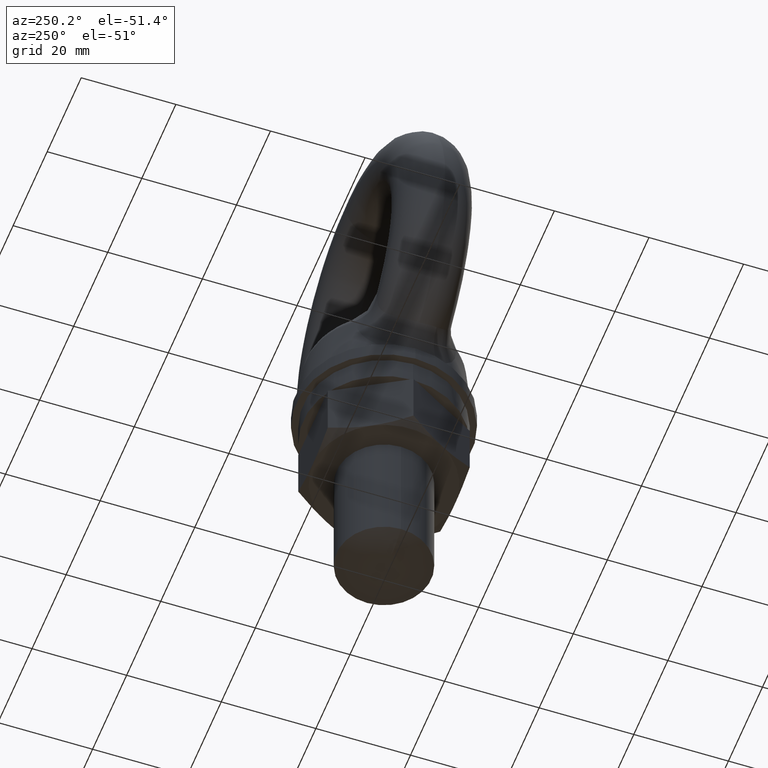
[diagram: clean part render]
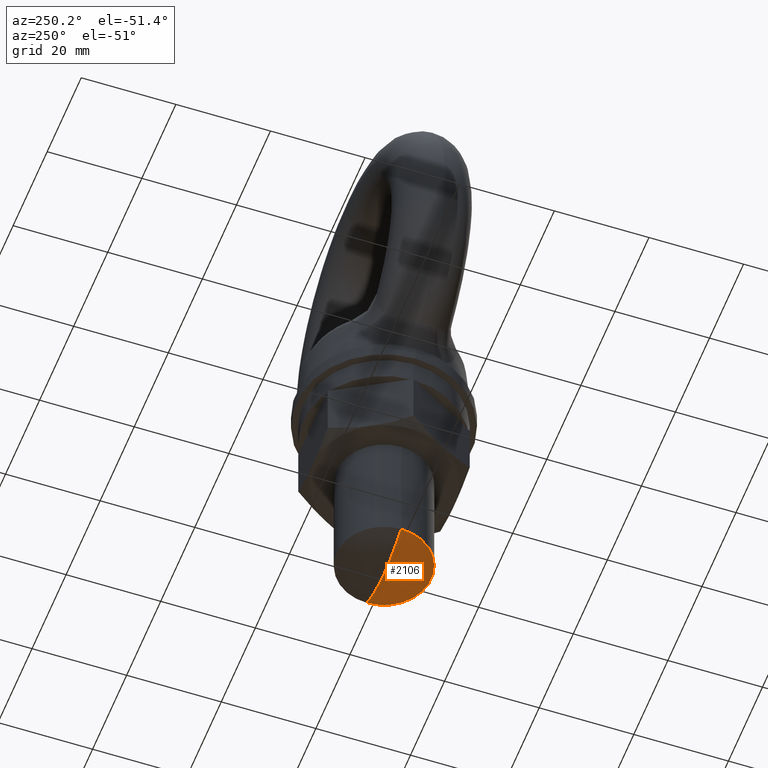
[diagram: same view with one face highlighted and labeled with its STEP entity id]
A machine part, auxiliary view. The second image highlights one B-rep face of the part: STEP entity #2106.
In plain terms, the highlighted spherical surface has radius 21.25 mm.
Its self-contained STEP definition (entity closure, byte-faithful):
#1591 = VERTEX_POINT ( 'NONE', #3097 ) ;
#1592 = VERTEX_POINT ( 'NONE', #3096 ) ;
#1594 = EDGE_CURVE ( 'NONE', #1592, #1595, #3210, .T. ) ;
#1595 = VERTEX_POINT ( 'NONE', #3214 ) ;
#1620 = EDGE_CURVE ( 'NONE', #1591, #1595, #3080, .T. ) ;
#1798 = EDGE_CURVE ( 'NONE', #1592, #1591, #6396, .T. ) ;
#2106 = ADVANCED_FACE ( 'NONE', ( #10552 ), #10551, .T. ) ;
#2107 = EDGE_LOOP ( 'NONE', ( #2108, #2109, #2110 ) ) ;
#2108 = ORIENTED_EDGE ( 'NONE', *, *, #1594, .F. ) ;
#2109 = ORIENTED_EDGE ( 'NONE', *, *, #1798, .T. ) ;
#2110 = ORIENTED_EDGE ( 'NONE', *, *, #1620, .T. ) ;
#3064 = DIRECTION ( 'NONE',  ( 0.0000000000000000000, 0.0000000000000000000, -1.000000000000000000 ) ) ;
#3077 = DIRECTION ( 'NONE',  ( 0.0000000000000000000, -1.000000000000000000, 0.0000000000000000000 ) ) ;
#3078 = CARTESIAN_POINT ( 'NONE',  ( 0.0000000000000000000, 0.0000000000000000000, -63.75000000000000000 ) ) ;
#3079 = AXIS2_PLACEMENT_3D ( 'NONE', #3078, #3077, #3064 ) ;
#3080 = CIRCLE ( 'NONE', #3079, 21.25000000000000400 ) ;
#3096 = CARTESIAN_POINT ( 'NONE',  ( 9.999998711995109700, 0.0000000000000000000, -82.50000068693590500 ) ) ;
#3097 = CARTESIAN_POINT ( 'NONE',  ( -9.999998711995109700, 1.224606274957423500E-015, -82.50000068693590500 ) ) ;
#3179 = DIRECTION ( 'NONE',  ( -1.000000000000000000, -1.224606353822377500E-016, 0.0000000000000000000 ) ) ;
#3180 = DIRECTION ( 'NONE',  ( -1.224606353822377300E-016, 1.000000000000000000, 0.0000000000000000000 ) ) ;
#3181 = CARTESIAN_POINT ( 'NONE',  ( 0.0000000000000000000, 0.0000000000000000000, -63.75000000000000000 ) ) ;
#3182 = AXIS2_PLACEMENT_3D ( 'NONE', #3181, #3180, #3179 ) ;
#3210 = CIRCLE ( 'NONE', #3182, 21.25000000000000000 ) ;
#3214 = CARTESIAN_POINT ( 'NONE',  ( -1.301144250936276000E-015, 0.0000000000000000000, -85.00000000000000000 ) ) ;
#6392 = DIRECTION ( 'NONE',  ( -1.000000000000000000, 0.0000000000000000000, 0.0000000000000000000 ) ) ;
#6393 = DIRECTION ( 'NONE',  ( 0.0000000000000000000, 0.0000000000000000000, -1.000000000000000000 ) ) ;
#6394 = CARTESIAN_POINT ( 'NONE',  ( 0.0000000000000000000, 0.0000000000000000000, -82.50000068693590500 ) ) ;
#6395 = AXIS2_PLACEMENT_3D ( 'NONE', #6394, #6393, #6392 ) ;
#6396 = CIRCLE ( 'NONE', #6395, 9.999998711995109700 ) ;
#10547 = DIRECTION ( 'NONE',  ( -1.000000000000000000, 0.0000000000000000000, 0.0000000000000000000 ) ) ;
#10548 = DIRECTION ( 'NONE',  ( 0.0000000000000000000, 1.000000000000000000, 0.0000000000000000000 ) ) ;
#10549 = CARTESIAN_POINT ( 'NONE',  ( 0.0000000000000000000, 0.0000000000000000000, -63.75000000000000000 ) ) ;
#10550 = AXIS2_PLACEMENT_3D ( 'NONE', #10549, #10548, #10547 ) ;
#10551 = SPHERICAL_SURFACE ( 'NONE', #10550, 21.25000000000000000 ) ;
#10552 = FACE_OUTER_BOUND ( 'NONE', #2107, .T. ) ;